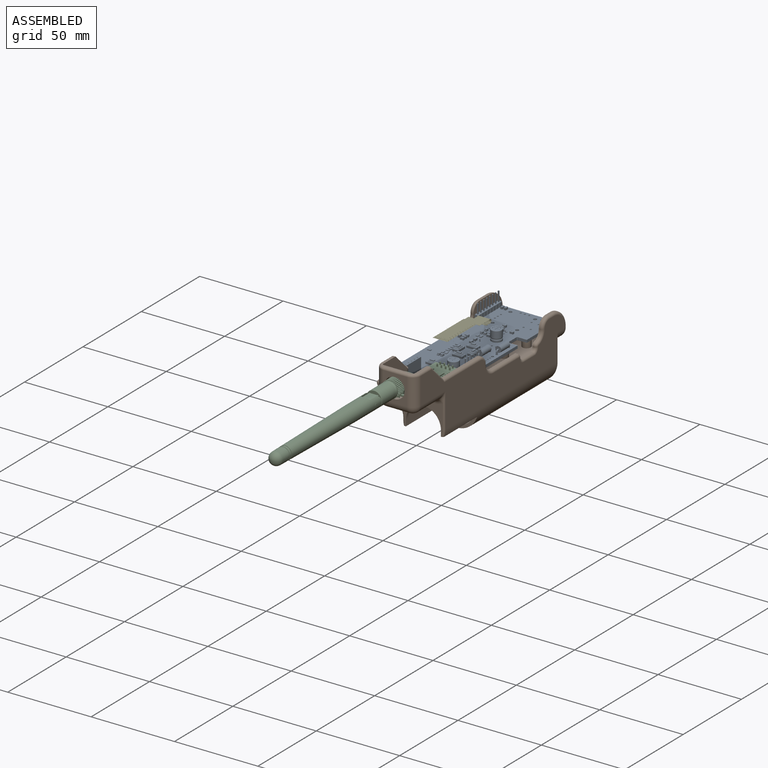
[diagram: assembled view]
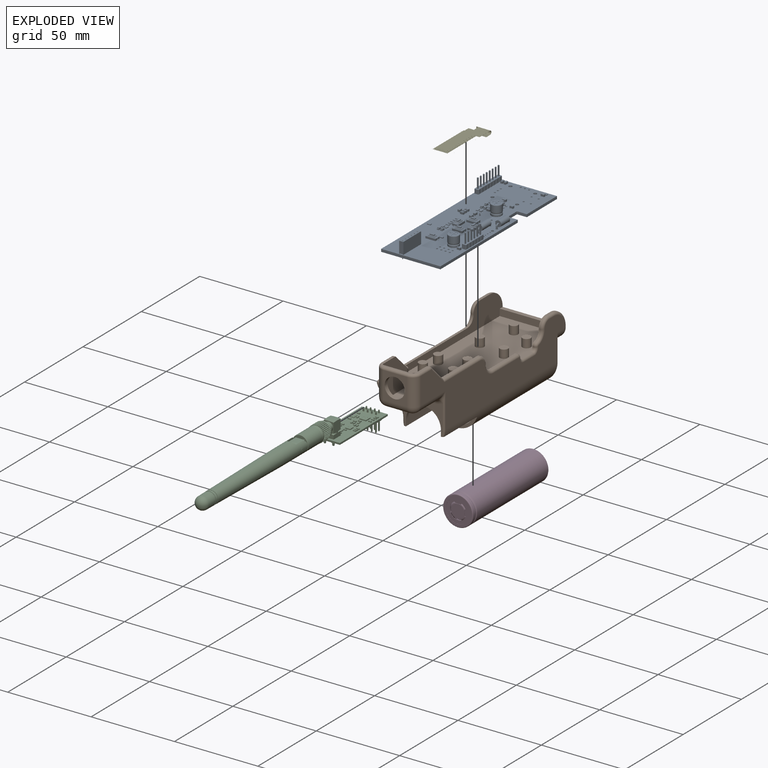
[diagram: exploded view]
GUIDED TOUR — FREECAD ASSEMBLY "Transmitter Case V2"

This assembly has 5 components, labeled P0..P4 below (a component is one placed body or linked part; the same part can appear more than once), held together by 0 modeled joints plus 6 derived contact edges. A joint is a constraint between two components; its type names the relative motion it leaves free:
  CONTACT — a derived adjacency edge — the two components touch in the source model (clearance under 2% of the assembly's diagonal); it is measured from the geometry, not a modeled constraint.
Axis/direction vectors are unit vectors and 'through' points are millimeter coordinates, both in the assembly's world frame.

MATES
  1. CONTACT "contact_0_1": P0 <-> P1, contact direction (0.000, 0.000, -1.000) through (31.64, 61.75, -1.55) mm (derived from contact, not a modeled constraint)
  2. CONTACT "contact_0_2": P0 <-> P2, contact direction (0.000, 0.000, 1.000) through (29.58, 15.05, 0.25) mm (derived from contact, not a modeled constraint)
  3. CONTACT "contact_0_4": P0 <-> P4, contact direction (0.000, 0.000, 1.000) through (9.36, 79.00, 0.19) mm (derived from contact, not a modeled constraint)
  4. CONTACT "contact_1_2": P1 <-> P2, contact direction (0.000, -1.000, 0.000) through (20.39, -24.97, 9.91) mm (derived from contact, not a modeled constraint)
  5. CONTACT "contact_1_3": P1 <-> P3, contact direction (0.000, 0.000, -1.000) through (26.37, 26.85, -9.56) mm (derived from contact, not a modeled constraint)
  6. CONTACT "contact_1_4": P1 <-> P4, contact direction (0.000, 1.000, 0.000) through (0.17, 75.50, -0.32) mm (derived from contact, not a modeled constraint)

ASSEMBLY ORDER
  1. P1 — the base component [order verified]
  2. P0 [order verified]
  3. P2 [order verified]
  4. P4 [order verified]
  5. P3 [order verified]
Order-tag legend:
  [order verified] — this step's position reverses a verified removal order: the component was checked to insert without passing through the ones already placed.

Of the 5 components, 1 carries a construction recipe — the FreeCAD feature program (sketches with constraints, then the solid features that consume them) that regenerates the part from scratch, quoted from this document or from the linked companion document it references; the rest are supplied as boundary geometry only. The tour below walks the components in assembly order: each is shown spotlighted twice — in the assembled view, then in the exploded view, where a leader line traces a displaced component back to its assembled socket (components that stay in place when exploded have no leader line; saturated green if recipe-attached, orange if geometry-only; every other component desaturated gray) — followed by its recipe or geometry summary and the mates that hold it.
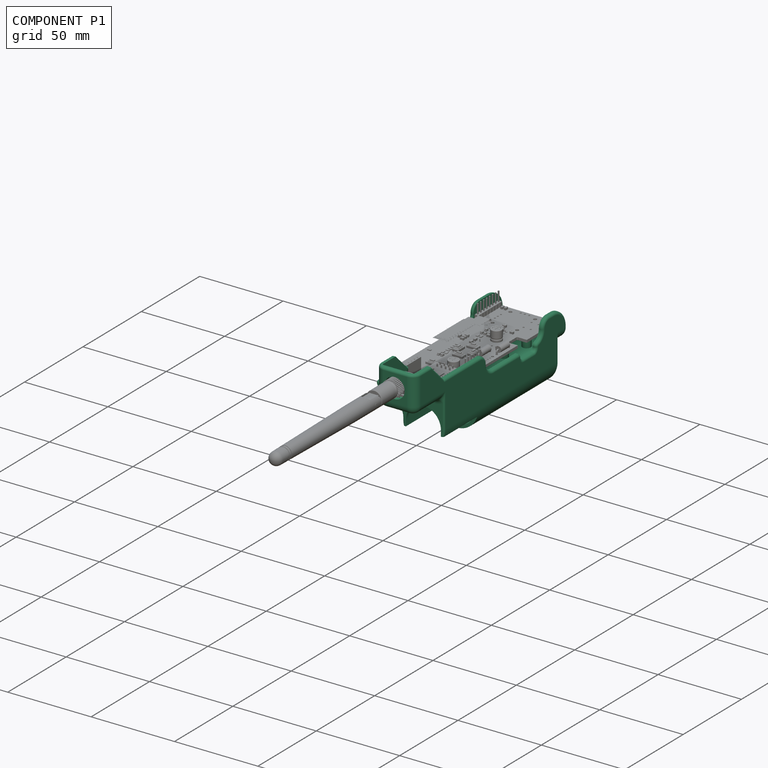
[diagram: component P1 — assembled]
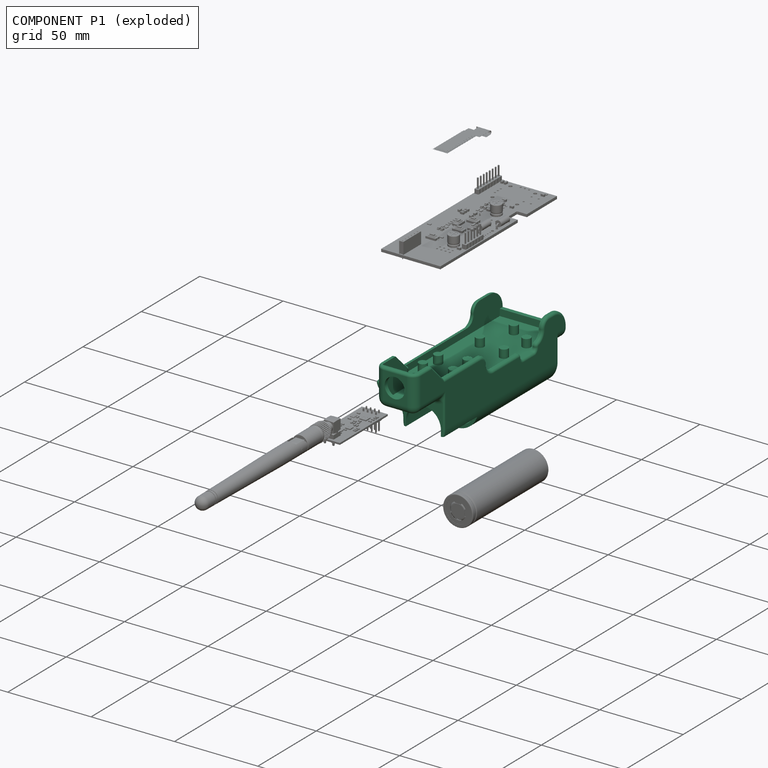
[diagram: component P1 — exploded]
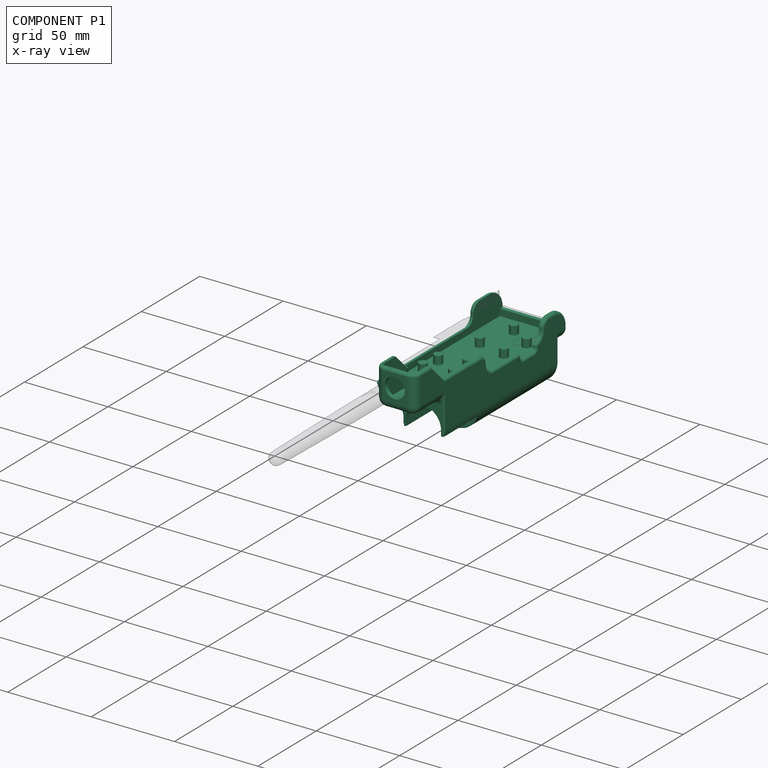
[diagram: component P1 — x-ray view]
COMPONENT P1 — recipe-attached ("Transmitter Case001", modeled in this document).
Held by: resting contact with P0 (derived edge); resting contact with P2 (derived edge); resting contact with P3 (derived edge); resting contact with P4 (derived edge).
Construction recipe (the document's own serialized feature program — sketch geometry with constraints, then the solid features built on it; lengths are millimeters unless a unit is written):

FEATURE [Sketcher::SketchObject] Sketch
  FullyConstrained = true
  MapMode = 5
  Support = -> [XY_Plane]
  sketch-geometry (4):
    g0: LineSegment StartX=0 StartY=0 StartZ=0 EndX=41 EndY=0 EndZ=0
    g1: LineSegment StartX=41 StartY=0 StartZ=0 EndX=41 EndY=105 EndZ=0
    g2: LineSegment StartX=41 StartY=105 StartZ=0 EndX=0 EndY=105 EndZ=0
    g3: LineSegment StartX=0 StartY=105 StartZ=0 EndX=0 EndY=0 EndZ=0
  constraints (11):
    c: Coincident(g0,g1)
    c: Coincident(g1,g2)
    c: Coincident(g2,g3)
    c: Coincident(g3,g0)
    c: Horizontal(g0)
    c: Horizontal(g2)
    c: Vertical(g1)
    c: Vertical(g3)
    c: Coincident(g0,g-1)
    c: Distance(g2) = 41
    c: Distance(g1) = 105
FEATURE [PartDesign::Pad] Pad
  Direction = (1,1,1)
  Length = 2.5
  Length2 = 100
  Profile = -> Sketch
  Type = 0
FEATURE [Sketcher::SketchObject] Sketch001
  ExternalGeometry = -> [Pad]
  FullyConstrained = true
  MapMode = 5
  Placement = pos=(0,0,2.5) rot=(0,0,1;0rad)
  Support = -> [Pad]
  sketch-geometry (8):
    g0: LineSegment StartX=0 StartY=105 StartZ=0 EndX=41 EndY=105 EndZ=0
    g1: LineSegment StartX=41 StartY=105 StartZ=0 EndX=41 EndY=0 EndZ=0
    g2: LineSegment StartX=41 StartY=0 StartZ=0 EndX=0 EndY=0 EndZ=0
    g3: LineSegment StartX=0 StartY=0 StartZ=0 EndX=0 EndY=105 EndZ=0
    g4: LineSegment StartX=2.5 StartY=102.5 StartZ=0 EndX=38.5 EndY=102.5 EndZ=0
    g5: LineSegment StartX=38.5 StartY=102.5 StartZ=0 EndX=38.5 EndY=2.5 EndZ=0
    g6: LineSegment StartX=38.5 StartY=2.5 StartZ=0 EndX=2.5 EndY=2.5 EndZ=0
    g7: LineSegment StartX=2.5 StartY=2.5 StartZ=0 EndX=2.5 EndY=102.5 EndZ=0
  constraints (22):
    c: Coincident(g0,g1)
    c: Coincident(g1,g2)
    c: Coincident(g2,g3)
    c: Coincident(g3,g0)
    c: Horizontal(g0)
    c: Horizontal(g2)
    c: Vertical(g1)
    c: Vertical(g3)
    c: Coincident(g0,g-3)
    c: Coincident(g1,g-4)
    c: Coincident(g4,g5)
    c: Coincident(g5,g6)
    c: Coincident(g6,g7)
    c: Coincident(g7,g4)
    c: Horizontal(g4)
    c: Horizontal(g6)
    c: Vertical(g5)
    c: Vertical(g7)
    c: Distance(g4,g1) = 2.5
    c: Distance(g4,g0) = 2.5
    c: Distance(g6,g2) = 2.5
    c: Distance(g6,g3) = 2.5
FEATURE [PartDesign::Pad] Pad001
  BaseFeature = -> Pad
  Direction = (1,1,1)
  Length = 15
  Length2 = 100
  Profile = -> Sketch001
  Type = 0
FEATURE [Sketcher::SketchObject] Sketch002
  AttachmentOffset = pos=(0,0,-6) rot=(0,0,1;0rad)
  ExternalGeometry = -> [Pad001]
  FullyConstrained = true
  MapMode = 5
  Placement = pos=(0,0,6) rot=(1,0,0;3.14159rad)
  Support = -> [Pad001]
  sketch-geometry (4):
    g0: LineSegment StartX=17 StartY=0 StartZ=0 EndX=41 EndY=0 EndZ=0
    g1: LineSegment StartX=41 StartY=0 StartZ=0 EndX=41 EndY=25 EndZ=0
    g2: LineSegment StartX=41 StartY=25 StartZ=0 EndX=17 EndY=25 EndZ=0
    g3: LineSegment StartX=17 StartY=25 StartZ=0 EndX=17 EndY=0 EndZ=0
  constraints (11):
    c: Coincident(g0,g1)
    c: Coincident(g1,g2)
    c: Coincident(g2,g3)
    c: Coincident(g3,g0)
    c: Horizontal(g0)
    c: Horizontal(g2)
    c: Vertical(g1)
    c: Vertical(g3)
    c: Coincident(g0,g-3)
    c: Distance(g0) = 24
    c: Distance(g1) = 25
FEATURE [PartDesign::Pad] Pad002
  BaseFeature = -> Pad001
  Direction = (1,1,1)
  Length = 2.5
  Length2 = 100
  Profile = -> Sketch002
  Reversed = true
  Type = 0
FEATURE [Sketcher::SketchObject] Sketch003
  ExternalGeometry = -> [Pad002]
  FullyConstrained = true
  MapMode = 5
  Placement = pos=(0,0,8.5) rot=(0,0,1;0rad)
  Support = -> [Pad002]
  sketch-geometry (8):
    g0: LineSegment StartX=41 StartY=0 StartZ=0 EndX=41 EndY=-25 EndZ=0
    g1: LineSegment StartX=41 StartY=-25 StartZ=0 EndX=17 EndY=-25 EndZ=0
    g2: LineSegment StartX=17 StartY=-25 StartZ=0 EndX=17 EndY=0 EndZ=0
    g3: LineSegment StartX=38.5 StartY=0 StartZ=0 EndX=38.5 EndY=-22.5 EndZ=0
    g4: LineSegment StartX=38.5 StartY=-22.5 StartZ=0 EndX=19.5 EndY=-22.5 EndZ=0
    g5: LineSegment StartX=19.5 StartY=-22.5 StartZ=0 EndX=19.5 EndY=0 EndZ=0
    g6: LineSegment StartX=19.5 StartY=0 StartZ=0 EndX=17 EndY=0 EndZ=0
    g7: LineSegment StartX=38.5 StartY=0 StartZ=0 EndX=41 EndY=0 EndZ=0
  constraints (22):
    c: Coincident(g0,g1)
    c: Coincident(g1,g2)
    c: Horizontal(g1)
    c: Vertical(g0)
    c: Vertical(g2)
    c: Coincident(g0,g-5)
    c: Coincident(g3,g4)
    c: Coincident(g4,g5)
    c: Horizontal(g4)
    c: Vertical(g3)
    c: Vertical(g5)
    c: PointOnObject(g5,g-1)
    c: Distance(g3,g0) = 2.5
    c: Distance(g3,g1) = 2.5
    c: Distance(g4,g2) = 2.5
    c: Coincident(g2,g-3)
    c: PointOnObject(g3,g-1)
    c: Coincident(g6,g5)
    c: Coincident(g6,g2)
    c: Coincident(g7,g3)
    c: Coincident(g7,g0)
    c: Horizontal(g7)
FEATURE [PartDesign::Pad] Pad003
  BaseFeature = -> Pad002
  Direction = (1,1,1)
  Length = 20
  Length2 = 100
  Profile = -> Sketch003
  Type = 0
FEATURE [Sketcher::SketchObject] Sketch004
  ExternalGeometry = -> [Pad003]
  FullyConstrained = true
  MapMode = 5
  Placement = pos=(0,0,17.5) rot=(0,0,1;0rad)
  Support = -> [Pad003]
  sketch-geometry (20):
    g0: LineSegment StartX=0 StartY=80 StartZ=0 EndX=2.5 EndY=80 EndZ=0
    g1: LineSegment StartX=2.5 StartY=80 StartZ=0 EndX=2.5 EndY=0 EndZ=0
    g2: LineSegment StartX=2.5 StartY=0 StartZ=0 EndX=0 EndY=0 EndZ=0
    g3: LineSegment StartX=0 StartY=0 StartZ=0 EndX=0 EndY=80 EndZ=0
    g4: LineSegment StartX=2.5 StartY=102.5 StartZ=0 EndX=38.5 EndY=102.5 EndZ=0
    g5: LineSegment StartX=38.5 StartY=102.5 StartZ=0 EndX=38.5 EndY=105 EndZ=0
    g6: LineSegment StartX=38.5 StartY=105 StartZ=0 EndX=2.5 EndY=105 EndZ=0
    g7: LineSegment StartX=2.5 StartY=105 StartZ=0 EndX=2.5 EndY=102.5 EndZ=0
    g8: LineSegment StartX=38.5 StartY=80.5 StartZ=0 EndX=41 EndY=80.5 EndZ=0
    g9: LineSegment StartX=41 StartY=80.5 StartZ=0 EndX=41 EndY=64.5 EndZ=0
    g10: LineSegment StartX=41 StartY=64.5 StartZ=0 EndX=38.5 EndY=64.5 EndZ=0
    g11: LineSegment StartX=38.5 StartY=64.5 StartZ=0 EndX=38.5 EndY=80.5 EndZ=0
    g12: LineSegment StartX=38.5 StartY=56.5 StartZ=0 EndX=41 EndY=56.5 EndZ=0
    g13: LineSegment StartX=41 StartY=56.5 StartZ=0 EndX=41 EndY=36.5 EndZ=0
    g14: LineSegment StartX=41 StartY=36.5 StartZ=0 EndX=38.5 EndY=36.5 EndZ=0
    g15: LineSegment StartX=38.5 StartY=36.5 StartZ=0 EndX=38.5 EndY=56.5 EndZ=0
    g16: LineSegment StartX=38.5 StartY=0 StartZ=0 EndX=19.5 EndY=0 EndZ=0
    g17: LineSegment StartX=19.5 StartY=0 StartZ=0 EndX=19.5 EndY=2.5 EndZ=0
    g18: LineSegment StartX=19.5 StartY=2.5 StartZ=0 EndX=38.5 EndY=2.5 EndZ=0
    g19: LineSegment StartX=38.5 StartY=2.5 StartZ=0 EndX=38.5 EndY=0 EndZ=0
  constraints (55):
    c: Coincident(g0,g1)
    c: Coincident(g1,g2)
    c: Coincident(g2,g3)
    c: Coincident(g3,g0)
    c: Horizontal(g0)
    c: Horizontal(g2)
    c: Vertical(g1)
    c: Vertical(g3)
    c: PointOnObject(g0,g-4)
    c: PointOnObject(g1,g-5)
    c: PointOnObject(g-3,g1)
    c: Distance(g1) = 80
    c: Coincident(g4,g5)
    c: Coincident(g5,g6)
    c: Coincident(g6,g7)
    c: Coincident(g7,g4)
    c: Horizontal(g6)
    c: Vertical(g5)
    c: Vertical(g7)
    c: Coincident(g4,g-6)
    c: PointOnObject(g5,g-7)
    c: Coincident(g4,g-6)
    c: Coincident(g8,g9)
    c: Coincident(g9,g10)
    c: Coincident(g10,g11)
    c: Coincident(g11,g8)
    c: Horizontal(g8)
    c: Horizontal(g10)
    c: Vertical(g9)
    c: Vertical(g11)
    c: PointOnObject(g8,g-8)
    c: PointOnObject(g9,g-9)
    c: Distance(g9) = 16
    c: Distance(g8,g-9) = 24.5
    c: Coincident(g12,g13)
    c: Coincident(g13,g14)
    c: Coincident(g14,g15)
    c: Coincident(g15,g12)
    c: Horizontal(g12)
    c: Horizontal(g14)
    c: Vertical(g13)
    c: Vertical(g15)
    c: PointOnObject(g12,g-8)
    c: PointOnObject(g13,g-9)
    c: Distance(g13) = 20
    c: Distance(g12,g9) = 8
    c: Coincident(g16,g17)
    c: Coincident(g17,g18)
    c: Coincident(g18,g19)
    c: Coincident(g19,g16)
    c: Horizontal(g18)
    c: Vertical(g17)
    c: Coincident(g16,g-12)
    c: Coincident(g-8,g18)
    c: Coincident(g16,g-10)
FEATURE [PartDesign::Pocket] Pocket
  BaseFeature = -> Pad003
  Length = 11
  Length2 = 100
  Profile = -> Sketch004
  Type = 0
FEATURE [PartDesign::Pocket] Pocket001
  BaseFeature = -> Pocket
  Length = 4
  Length2 = 100
  Profile = -> Pocket [Face27]
  Type = 0
FEATURE [PartDesign::Pad] Pad004
  BaseFeature = -> Pocket001
  Direction = (1,1,1)
  Length = 2
  Length2 = 100
  Profile = -> Pocket001 [Face45]
  Refine = true
  Type = 0
FEATURE [Sketcher::SketchObject] Sketch005
  AttachmentOffset = pos=(0,0,-8) rot=(0,0,1;0rad)
  ExternalGeometry = -> [Pad004]
  FullyConstrained = true
  MapMode = 5
  Placement = pos=(0,97,1.8e-15) rot=(0,0.707107,0.707107;3.14159rad)
  Support = -> [Pad004]
  sketch-geometry (8):
    g0: Circle CenterX=-28.5 CenterY=-10.5 CenterZ=0 NormalX=0 NormalY=0 NormalZ=1 AngleXU=0 Radius=10.5
    g1: LineSegment StartX=-41 StartY=0.2 StartZ=0 EndX=-41 EndY=-23 EndZ=0
    g2: LineSegment StartX=-41 StartY=-23 StartZ=0 EndX=-16 EndY=-23 EndZ=0
    g3: LineSegment StartX=-16 StartY=-23 StartZ=0 EndX=-16 EndY=0.2 EndZ=0
    g4: LineSegment StartX=-18 StartY=-10.5 StartZ=0 EndX=-16 EndY=-10.5 EndZ=0
    g5: LineSegment StartX=-41 StartY=-10.5 StartZ=0 EndX=-39 EndY=-10.5 EndZ=0
    g6: LineSegment StartX=-28.5 StartY=-21 StartZ=0 EndX=-28.5 EndY=-23 EndZ=0
    g7: LineSegment StartX=-41 StartY=0.2 StartZ=0 EndX=-16 EndY=0.2 EndZ=0
  constraints (27):
    c: Diameter(g0) = 21
    c: Tangent(g-3,g0)
    c: Vertical(g1)
    c: Coincident(g2,g1)
    c: Horizontal(g2)
    c: Coincident(g3,g2)
    c: Vertical(g3)
    c: PointOnObject(g4,g0)
    c: PointOnObject(g4,g3)
    c: Horizontal(g4)
    c: Perpendicular(g0,g4)
    c: PointOnObject(g5,g1)
    c: PointOnObject(g5,g0)
    c: Horizontal(g5)
    c: Perpendicular(g0,g5)
    c: Distance(g5) = 2
    c: PointOnObject(g6,g0)
    c: PointOnObject(g6,g2)
    c: Vertical(g6)
    c: Perpendicular(g0,g6)
    c: Equal(g4,g6)
    c: Equal(g6,g5)
    c: Coincident(g7,g3)
    c: Coincident(g1,g7)
    c: Vertical(g1,g-3)
    c: Horizontal(g7)
    c: Distance(g1,g-3) = 0.2
FEATURE [PartDesign::Pad] Pad005
  BaseFeature = -> Pad004
  Direction = (1,1,1)
  Length = 68
  Length2 = 100
  Profile = -> Sketch005
  Reversed = true
  Type = 0
FEATURE [Sketcher::SketchObject] Sketch006
  ExternalGeometry = -> [Sketch005]
  FullyConstrained = true
  MapMode = 5
  Placement = pos=(0,97,0) rot=(0,0.707107,0.707107;3.14159rad)
  Support = -> [Pad005]
  sketch-geometry (4):
    g0: LineSegment StartX=-41 StartY=-23 StartZ=0 EndX=-16 EndY=-23 EndZ=0
    g1: LineSegment StartX=-16 StartY=-23 StartZ=0 EndX=-16 EndY=0.2 EndZ=0
    g2: LineSegment StartX=-16 StartY=0.2 StartZ=0 EndX=-41 EndY=0.2 EndZ=0
    g3: LineSegment StartX=-41 StartY=0.2 StartZ=0 EndX=-41 EndY=-23 EndZ=0
  constraints (10):
    c: Coincident(g0,g1)
    c: Coincident(g1,g2)
    c: Coincident(g2,g3)
    c: Coincident(g3,g0)
    c: Horizontal(g0)
    c: Horizontal(g2)
    c: Vertical(g1)
    c: Vertical(g3)
    c: Coincident(g0,g-4)
    c: Coincident(g1,g-3)
FEATURE [PartDesign::Pad] Pad006
  BaseFeature = -> Pad005
  Direction = (1,1,1)
  Length = 2
  Length2 = 100
  Profile = -> Sketch006
  Refine = true
  Reversed = true
  Type = 0
FEATURE [Sketcher::SketchObject] Sketch007
  ExternalGeometry = -> [Pad006]
  FullyConstrained = true
  MapMode = 5
  Placement = pos=(0,0,0) rot=(1,0,0;3.14159rad)
  Support = -> [Pad006]
  sketch-geometry (8):
    g0: LineSegment StartX=41 StartY=-29 StartZ=0 EndX=41 EndY=0 EndZ=0
    g1: LineSegment StartX=41 StartY=0 StartZ=0 EndX=16 EndY=0 EndZ=0
    g2: LineSegment StartX=16 StartY=0 StartZ=0 EndX=16 EndY=-29 EndZ=0
    g3: LineSegment StartX=39 StartY=-29 StartZ=0 EndX=39 EndY=-2 EndZ=0
    g4: LineSegment StartX=39 StartY=-2 StartZ=0 EndX=18 EndY=-2 EndZ=0
    g5: LineSegment StartX=18 StartY=-2 StartZ=0 EndX=18 EndY=-29 EndZ=0
    g6: LineSegment StartX=39 StartY=-29 StartZ=0 EndX=41 EndY=-29 EndZ=0
    g7: LineSegment StartX=18 StartY=-29 StartZ=0 EndX=16 EndY=-29 EndZ=0
  constraints (22):
    c: Coincident(g0,g1)
    c: Coincident(g1,g2)
    c: Horizontal(g1)
    c: Vertical(g0)
    c: Vertical(g2)
    c: Coincident(g3,g4)
    c: Coincident(g4,g5)
    c: Horizontal(g4)
    c: Vertical(g3)
    c: Vertical(g5)
    c: Distance(g5,g2) = 2
    c: Distance(g3,g0) = 2
    c: Coincident(g6,g3)
    c: Coincident(g6,g0)
    c: Coincident(g7,g2)
    c: Coincident(g5,g7)
    c: Horizontal(g7)
    c: Horizontal(g6)
    c: Horizontal(g3,g5)
    c: Coincident(g2,g-3)
    c: Distance(g3,g1) = 2
    c: Coincident(g0,g-4)
FEATURE [PartDesign::Pad] Pad007
  BaseFeature = -> Pad006
  Direction = (1,1,1)
  Length = 14
  Length2 = 100
  Profile = -> Sketch007
  Type = 0
FEATURE [Sketcher::SketchObject] Sketch008
  ExternalGeometry = -> [Pad007]
  FullyConstrained = true
  MapMode = 5
  Placement = pos=(0,0,0) rot=(1,0,0;1.5708rad)
  Support = -> [Pad007]
  sketch-geometry (1):
    g0: Circle CenterX=28.5 CenterY=-10.5 CenterZ=0 NormalX=0 NormalY=0 NormalZ=1 AngleXU=0 Radius=10.5
  constraints (2):
    c: Coincident(g0,g-4)
    c: PointOnObject(g-4,g0)
FEATURE [PartDesign::Pocket] Pocket002
  BaseFeature = -> Pad007
  Length = 2
  Length2 = 100
  Profile = -> Sketch008
  Type = 0
FEATURE [PartDesign::Pocket] Pocket003
  BaseFeature = -> Pocket002
  Length = 5
  Length2 = 100
  Profile = -> Pocket002 [Face49]
  Type = 0
FEATURE [PartDesign::Pocket] Pocket004
  BaseFeature = -> Pocket003
  Length = 5
  Length2 = 100
  Profile = -> Pocket003 [Face51]
  Refine = true
  Type = 0
FEATURE [PartDesign::Fillet] Fillet
  Base = -> Pocket004 [Edge49]
  BaseFeature = -> Pocket004
  Radius = 13
  SupportTransform = false
FEATURE [PartDesign::Fillet] Fillet001
  Base = -> Fillet [Edge31]
  BaseFeature = -> Fillet
  Radius = 11.9
  SupportTransform = false
FEATURE [PartDesign::Fillet] Fillet002
  Base = -> Fillet001 [Edge18]
  BaseFeature = -> Fillet001
  Radius = 10
  SupportTransform = false
FEATURE [PartDesign::Fillet] Fillet003
  Base = -> Fillet002 [Edge19]
  BaseFeature = -> Fillet002
  Radius = 6
  SupportTransform = false
FEATURE [Sketcher::SketchObject] Sketch009
  FullyConstrained = false
  MapMode = 5
  Placement = pos=(0,0,2.5) rot=(0,0,1;0rad)
  Support = -> [Fillet003]
  sketch-geometry (1):
    g0: Circle CenterX=24.1785 CenterY=23.5672 CenterZ=0 NormalX=0 NormalY=0 NormalZ=1 AngleXU=0 Radius=2.5
  constraints (1):
    c: Diameter(g0) = 5
FEATURE [PartDesign::Pocket] Pocket005
  BaseFeature = -> Fillet003
  Length = 5
  Length2 = 100
  Profile = -> Sketch009
  Type = 0
FEATURE [PartDesign::Fillet] Fillet004
  Base = -> Pocket005 [Edge19]
  BaseFeature = -> Pocket005
  Radius = 1
  SupportTransform = false
FEATURE [PartDesign::Fillet] Fillet005
  Base = -> Fillet004 [Edge15]
  BaseFeature = -> Fillet004
  Radius = 1
  SupportTransform = false
FEATURE [Sketcher::SketchObject] Sketch010
  FullyConstrained = false
  MapMode = 5
  Placement = pos=(0,-25,0) rot=(1,0,0;1.5708rad)
  Support = -> [Fillet005]
  sketch-geometry (1):
    g0: Circle CenterX=28.76 CenterY=19.176 CenterZ=0 NormalX=0 NormalY=0 NormalZ=1 AngleXU=0 Radius=6
  constraints (1):
    c: Diameter(g0) = 12
FEATURE [PartDesign::Pocket] Pocket006
  BaseFeature = -> Fillet005
  Length = 5
  Length2 = 100
  Profile = -> Sketch010
  Type = 0
FEATURE [PartDesign::Chamfer] Chamfer
  Angle = 45
  Base = -> Pocket006 [Edge88,Edge95]
  BaseFeature = -> Pocket006
  ChamferType = 0
  FlipDirection = false
  Size = 10.99
  Size2 = 1
  SupportTransform = false
FEATURE [PartDesign::Pocket] Pocket007
  BaseFeature = -> Chamfer
  Length = 8
  Length2 = 100
  Profile = -> Chamfer [Face38]
  Refine = true
  Type = 0
FEATURE [PartDesign::Fillet] Fillet006
  Base = -> Pocket007 [Edge117,Edge116,Edge114,Edge115,Edge148,Edge81]
  BaseFeature = -> Pocket007
  Radius = 5.49
  SupportTransform = false
FEATURE [PartDesign::Chamfer] Chamfer001
  Angle = 45
  Base = -> Fillet006 [Edge152]
  BaseFeature = -> Fillet006
  ChamferType = 0
  FlipDirection = false
  Size = 10.99
  Size2 = 1
  SupportTransform = false
FEATURE [PartDesign::Fillet] Fillet007
  Base = -> Chamfer001 [Edge42,Edge38,Edge43,Edge36,Edge104]
  BaseFeature = -> Chamfer001
  Radius = 5
  Refine = true
  SupportTransform = false
FEATURE [PartDesign::Fillet] Fillet008
  Base = -> Fillet007 [Edge4]
  BaseFeature = -> Fillet007
  Radius = 3
  SupportTransform = false
FEATURE [PartDesign::Fillet] Fillet009
  Base = -> Fillet008 [Edge125]
  BaseFeature = -> Fillet008
  Radius = 6
  SupportTransform = false
FEATURE [PartDesign::Fillet] Fillet010
  Base = -> Fillet009 [Edge26]
  BaseFeature = -> Fillet009
  Radius = 11
  SupportTransform = false
FEATURE [PartDesign::Fillet] Fillet011
  Base = -> Fillet010 [Edge8]
  BaseFeature = -> Fillet010
  Radius = 11
  SupportTransform = false
FEATURE [Sketcher::SketchObject] Sketch011
  ExternalGeometry = -> [Fillet011]
  FullyConstrained = true
  MapMode = 5
  Placement = pos=(0,0,6.5) rot=(0,0,1;0rad)
  Support = -> [Fillet011]
  sketch-geometry (4):
    g0: LineSegment StartX=38.5 StartY=79.01 StartZ=0 EndX=41 EndY=79.01 EndZ=0
    g1: LineSegment StartX=41 StartY=79.01 StartZ=0 EndX=41 EndY=66.01 EndZ=0
    g2: LineSegment StartX=41 StartY=66.01 StartZ=0 EndX=38.5 EndY=66.01 EndZ=0
    g3: LineSegment StartX=38.5 StartY=66.01 StartZ=0 EndX=38.5 EndY=79.01 EndZ=0
  constraints (11):
    c: Coincident(g0,g1)
    c: Coincident(g1,g2)
    c: Coincident(g2,g3)
    c: Coincident(g3,g0)
    c: Horizontal(g0)
    c: Horizontal(g2)
    c: Vertical(g1)
    c: Vertical(g3)
    c: Coincident(g0,g-4)
    c: PointOnObject(g1,g-5)
    c: Distance(g1) = 13
FEATURE [PartDesign::Pocket] Pocket008
  BaseFeature = -> Fillet011
  Length = 4
  Length2 = 100
  Profile = -> Sketch011
  Type = 0
FEATURE [PartDesign::Body] Body  label="Transmitter Case001"
  Group = -> [Sketch,Pad,Sketch001,Pad001,Sketch002,Pad002,Sketch003,Pad003,Sketch004,Pocket,Pocket001,Pad004,Sketch005,Pad005,Sketch006,Pad006,Sketch007,Pad007,Sketch008,Pocket002,Pocket003,Pocket004,Fillet,Fillet001,Fillet002,Fillet003,Sketch009,Pocket005,Fillet004,Fillet005,Sketch010,Pocket006,Chamfer,Pocket007,Fillet006,Chamfer001,Fillet007,Fillet008,Fillet009,Fillet010,Fillet011,Sketch011,Pocket008,+11 more]
  Origin = -> Origin
  Placement = pos=(-2.5,-2.5,-9) rot=(0,0,1;0rad)
  Tip = -> Fillet020
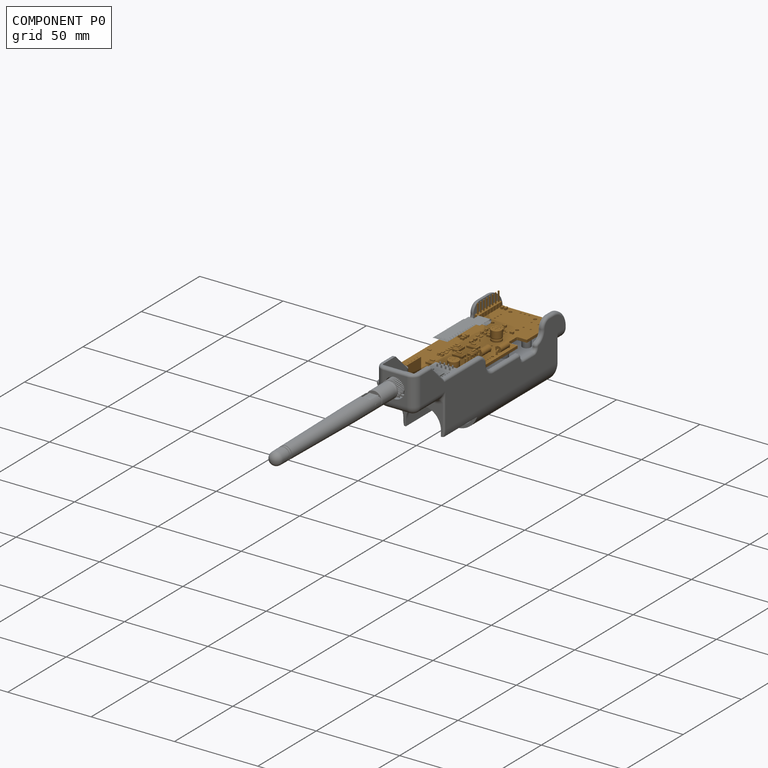
[diagram: component P0 — assembled]
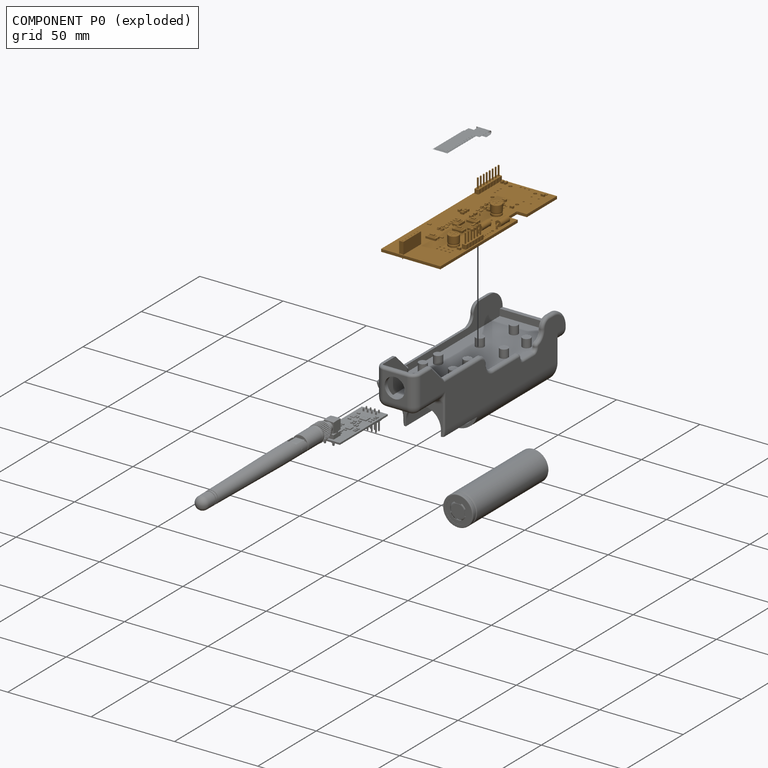
[diagram: component P0 — exploded]
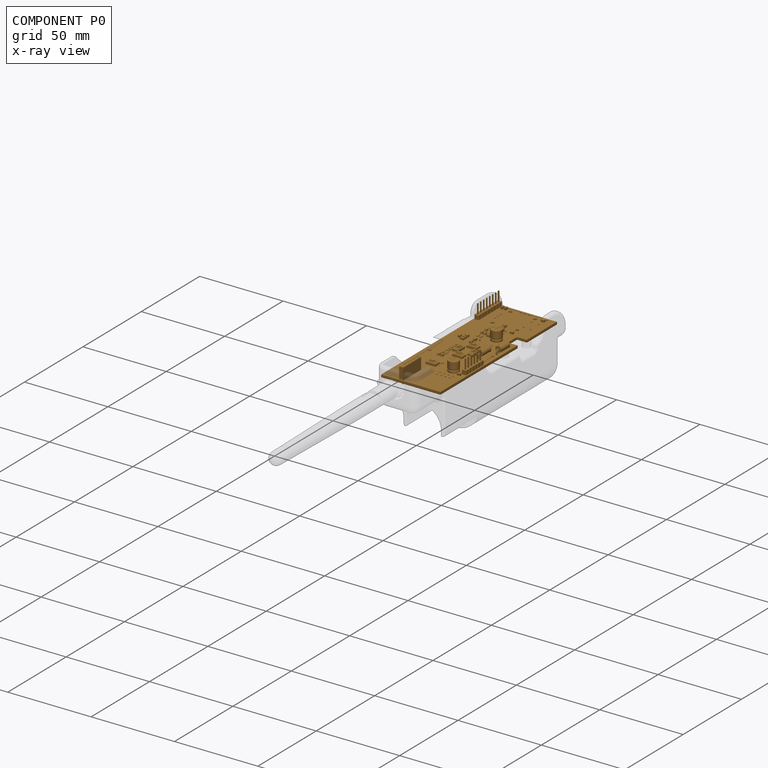
[diagram: component P0 — x-ray view]
COMPONENT P0 — geometry summary ("TransmitterV2"; no construction recipe available for this part):
  bounding box: 99.8 x 35.6 x 14.2 mm
  tessellated surface: 57,768 triangles
  volume: 7134 mm^3 (14% of its bounding box)
Held by: resting contact with P1 (derived edge); resting contact with P2 (derived edge); resting contact with P4 (derived edge).
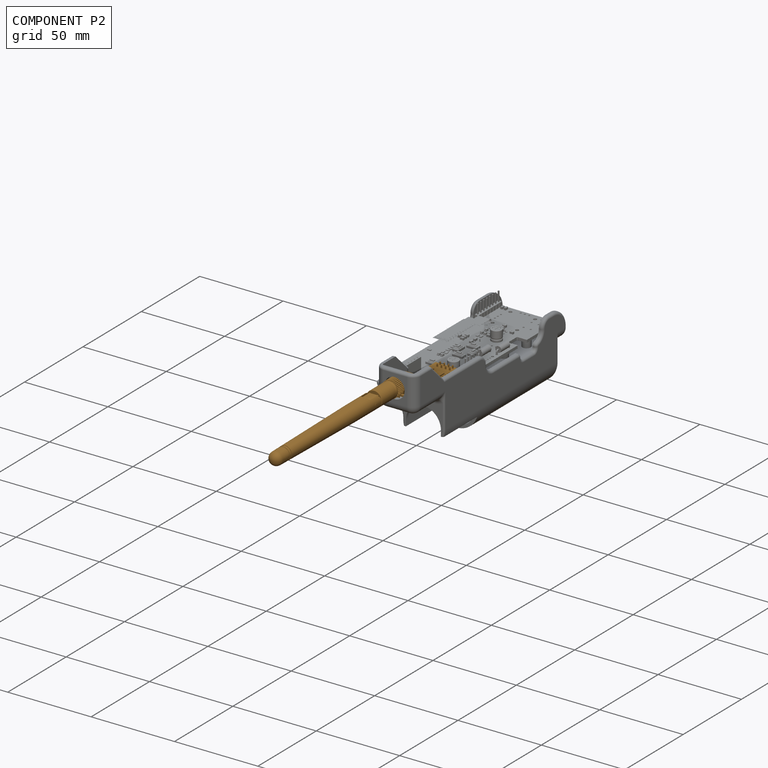
[diagram: component P2 — assembled]
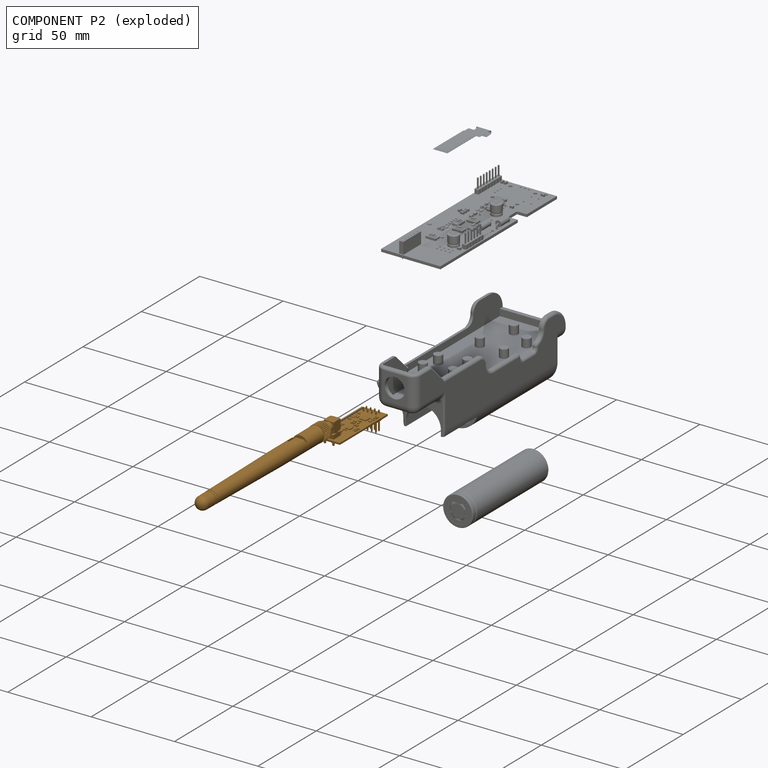
[diagram: component P2 — exploded]
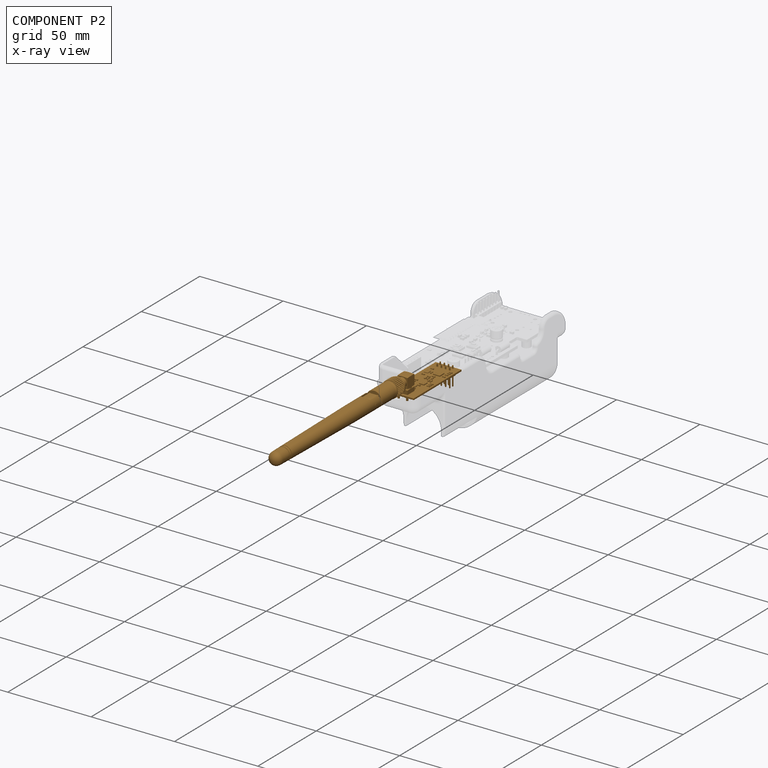
[diagram: component P2 — x-ray view]
COMPONENT P2 — geometry summary ("NRF24L01L+Antenna"; no construction recipe available for this part):
  bounding box: 151.4 x 20.7 x 15.5 mm
  tessellated surface: 35,600 triangles
  volume: 7849 mm^3 (16% of its bounding box)
  symmetry: mirror-symmetric across its x mid-plane
Held by: resting contact with P0 (derived edge); resting contact with P1 (derived edge).
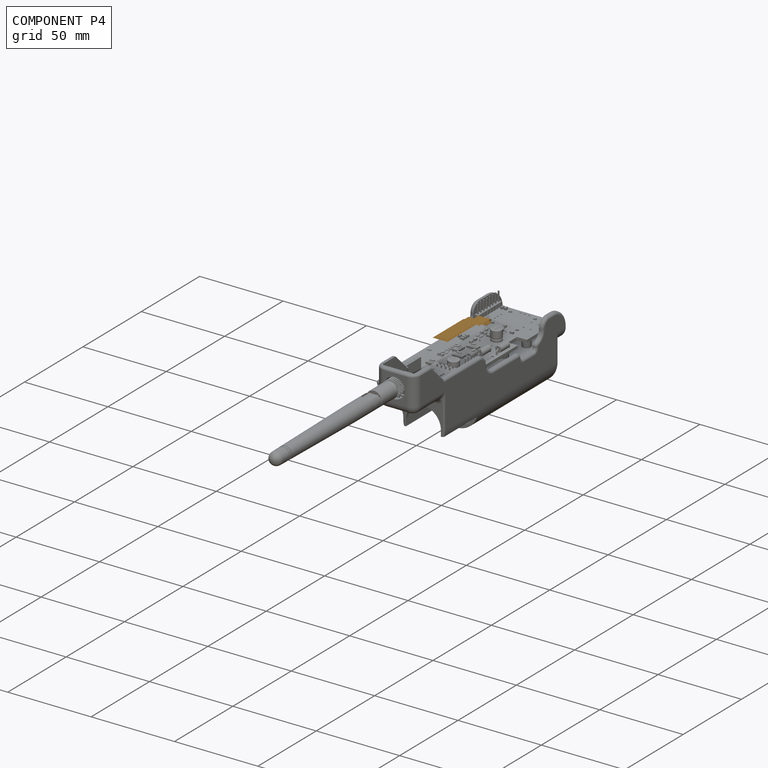
[diagram: component P4 — assembled]
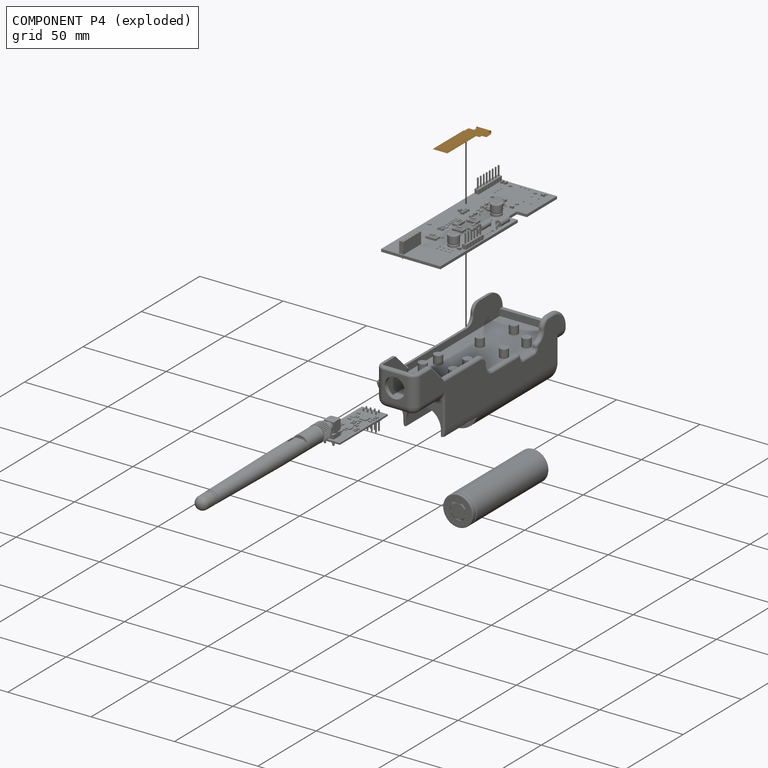
[diagram: component P4 — exploded]
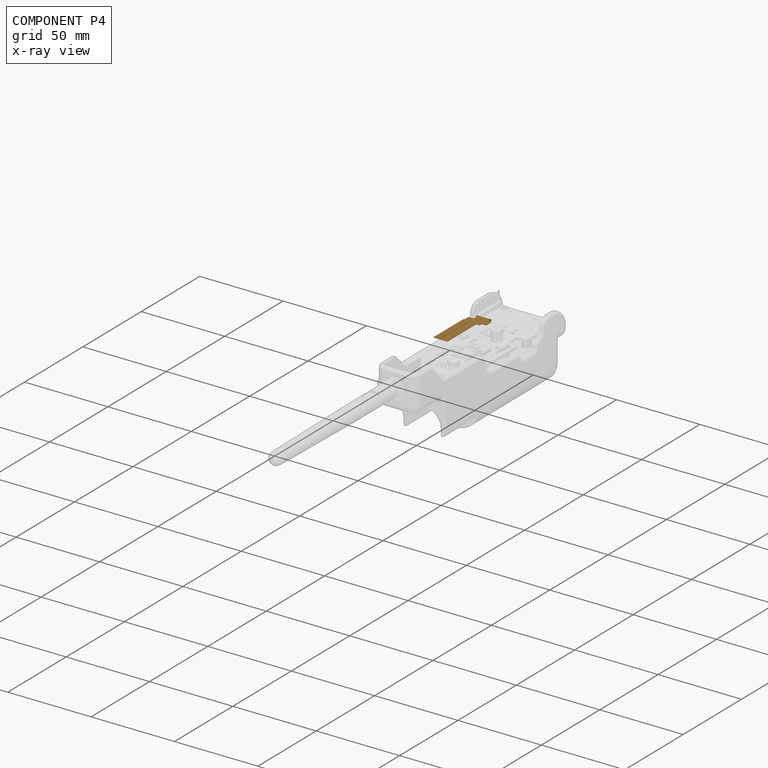
[diagram: component P4 — x-ray view]
COMPONENT P4 — geometry summary ("0.91in OLED - Folded - Without Glass002"; no construction recipe available for this part):
  bounding box: 34.9 x 11.5 x 2.3 mm
  tessellated surface: 2,696 triangles
  volume: 30 mm^3 (3% of its bounding box)
Held by: resting contact with P0 (derived edge); resting contact with P1 (derived edge).
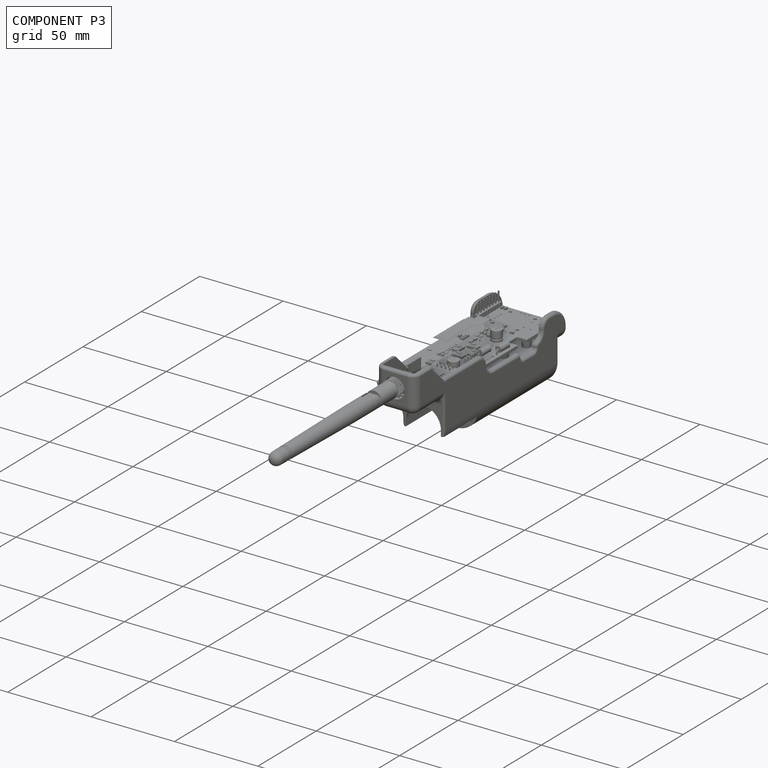
[diagram: component P3 — assembled]
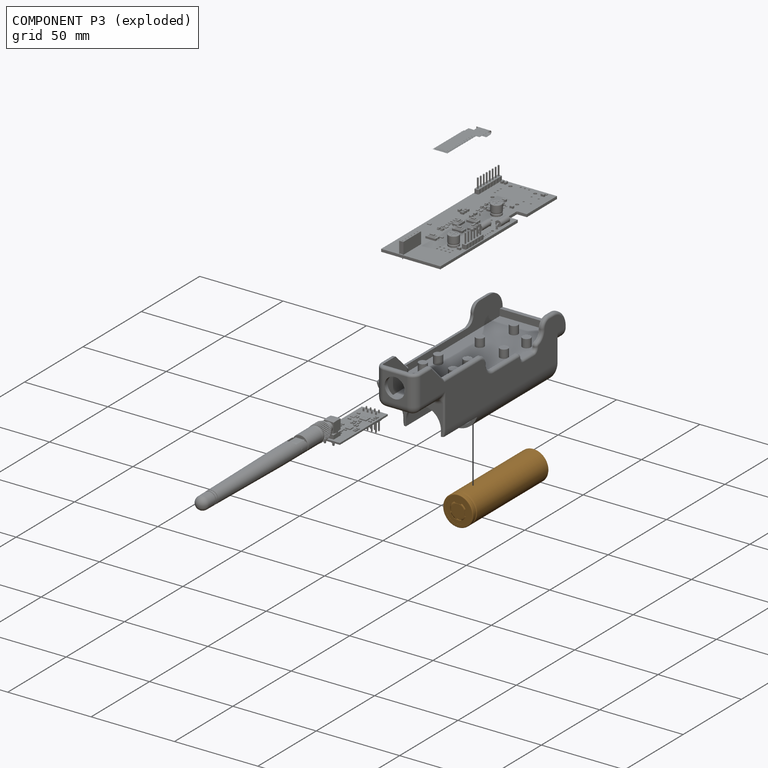
[diagram: component P3 — exploded]
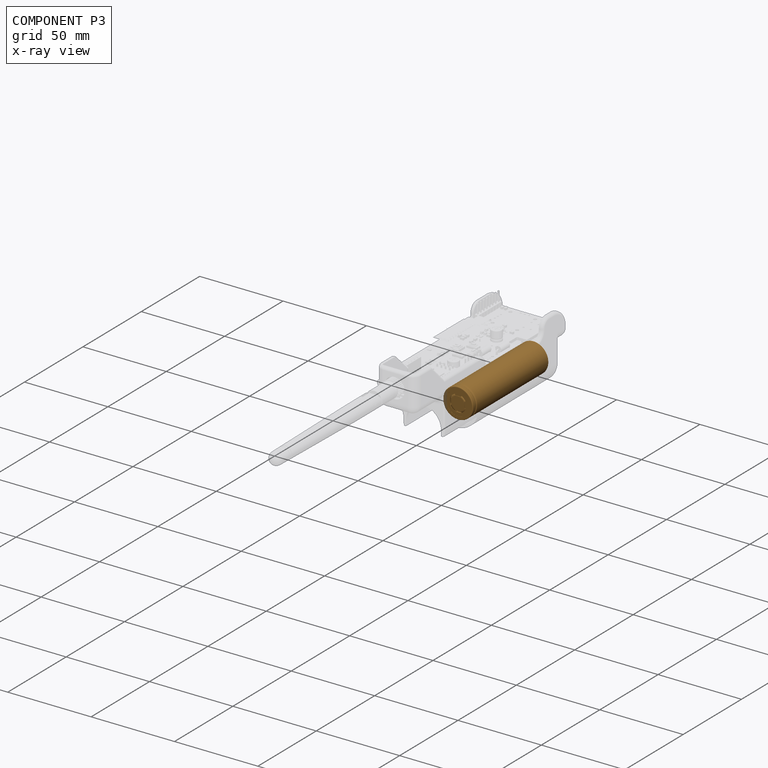
[diagram: component P3 — x-ray view]
COMPONENT P3 — geometry summary ("18650 v008"; no construction recipe available for this part):
  bounding box: 65.1 x 18.0 x 18.0 mm
  tessellated surface: 32,280 triangles
  volume: 14645 mm^3 (69% of its bounding box)
  symmetry: revolution-symmetric about the y axis through its bounding-box center; mirror-symmetric across its x mid-plane, z mid-plane
Held by: resting contact with P1 (derived edge).
PROVENANCE & LICENSES
Assembly and component geometry: a FreeCAD (.FCStd) document from a public repository crawl; components, placements and joints were extracted with FreeCAD and each solid tessellated.
Construction recipes: the document's own serialized feature recipes (and, for linked parts, the recipes of companion documents from the same project).
License: apache-2.0.
Joints: native FreeCAD joints and A2plus constraints are mapped to standard mate types; edges marked 'derived from contact' connect touching components and are measured from the geometry, not modeled.
Verification: 1 of this assembly's 5 components carries a construction recipe (1 from this document itself); the rest are geometry-only. Every component's tessellation passed the extraction mesh gates (mesh-volume checksum against the B-rep where available, bounding-box inflation <= 2%).
Renders: orthographic iso camera (az 35 / el 25); the floor grid conveys scale (grid pitch printed in each image; no ruler). In the exploded view each component is displaced by its stored offset vector: the offsets alone carry the explosion direction (mate normal/axis signs are not orientation cues and do not encode it), and separation distances are assigned per mate-chain, not proportionally to assembly-order depth.
